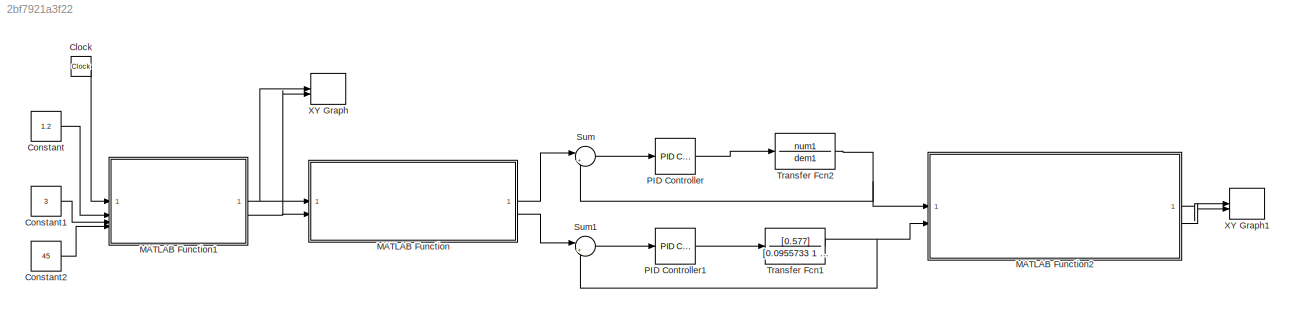
MODEL slx_2bf7921a3f22
KIND model
CONFIG AbsTol = auto
CONFIG EnableMultiTasking = off
CONFIG FixedStep = auto
CONFIG MaxStep = auto
CONFIG MinStep = auto
CONFIG RelTol = 1e-3
CONFIG SampleTimeConstraint = Unconstrained
CONFIG SolverName = VariableStepAuto
CONFIG StartTime = 0.0
CONFIG StopTime = 10.0
BLOCK [Clock] Clock
  Decimation = 1
BLOCK [Constant] Constant
  Value = 1.2
BLOCK [Constant] Constant1
  Value = 3
BLOCK [Constant] Constant2
  Value = 45
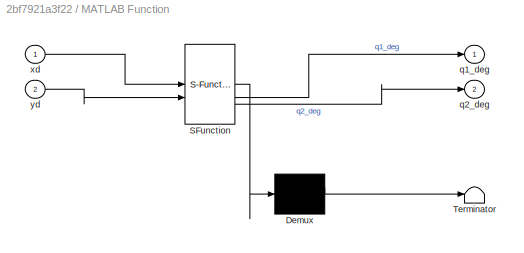
BLOCK [SubSystem] MATLAB Function
  ErrorFcn = Stateflow.Translate.translate
  PermitHierarchicalResolution = ExplicitOnly
  SFBlockType = MATLAB Function
  TreatAsAtomicUnit = on
BLOCK [Demux] MATLAB Function/ Demux 
  Outputs = 1
BLOCK [S-Function] MATLAB Function/ SFunction 
  EnableBusSupport = on
  FunctionName = sf_sfun
  PortCounts = [2 3]
  SFcnIsStateOwnerBlock = off
  SFunctionDeploymentMode = off
  Tag = Stateflow S-Function 2
BLOCK [Terminator] MATLAB Function/ Terminator 
BLOCK [Outport] MATLAB Function/q1_deg
BLOCK [Outport] MATLAB Function/q2_deg
  Port = 2
BLOCK [Inport] MATLAB Function/xd
BLOCK [Inport] MATLAB Function/yd
  Port = 2
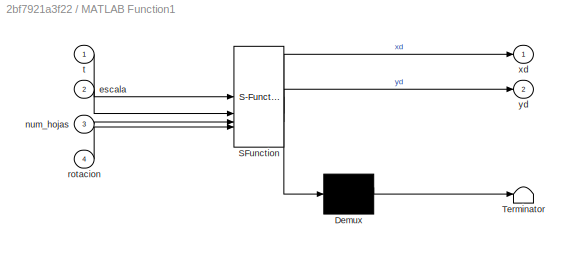
BLOCK [SubSystem] MATLAB Function1
  ErrorFcn = Stateflow.Translate.translate
  PermitHierarchicalResolution = ExplicitOnly
  SFBlockType = MATLAB Function
  TreatAsAtomicUnit = on
BLOCK [Demux] MATLAB Function1/ Demux 
  Outputs = 1
BLOCK [S-Function] MATLAB Function1/ SFunction 
  EnableBusSupport = on
  FunctionName = sf_sfun
  PortCounts = [4 3]
  SFcnIsStateOwnerBlock = off
  SFunctionDeploymentMode = off
  Tag = Stateflow S-Function 1
BLOCK [Terminator] MATLAB Function1/ Terminator 
BLOCK [Inport] MATLAB Function1/escala
  Port = 2
BLOCK [Inport] MATLAB Function1/num_hojas
  Port = 3
BLOCK [Inport] MATLAB Function1/rotacion
  Port = 4
BLOCK [Inport] MATLAB Function1/t
BLOCK [Outport] MATLAB Function1/xd
BLOCK [Outport] MATLAB Function1/yd
  Port = 2
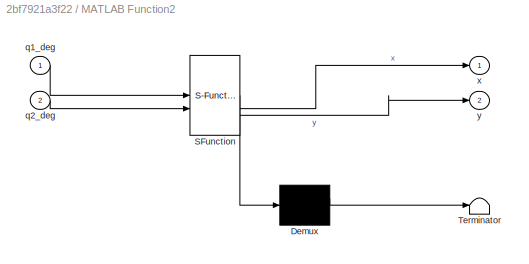
BLOCK [SubSystem] MATLAB Function2
  ErrorFcn = Stateflow.Translate.translate
  PermitHierarchicalResolution = ExplicitOnly
  SFBlockType = MATLAB Function
  TreatAsAtomicUnit = on
BLOCK [Demux] MATLAB Function2/ Demux 
  Outputs = 1
BLOCK [S-Function] MATLAB Function2/ SFunction 
  EnableBusSupport = on
  FunctionName = sf_sfun
  PortCounts = [2 3]
  SFcnIsStateOwnerBlock = off
  SFunctionDeploymentMode = off
  Tag = Stateflow S-Function 3
BLOCK [Terminator] MATLAB Function2/ Terminator 
BLOCK [Inport] MATLAB Function2/q1_deg
BLOCK [Inport] MATLAB Function2/q2_deg
  Port = 2
BLOCK [Outport] MATLAB Function2/x
BLOCK [Outport] MATLAB Function2/y
  Port = 2
BLOCK [Reference] PID Controller  REF=slpidlib/PID Controller
  LibrarySourceBlock = simulink/Continuous/PID Controller
  SourceBlock = slpidlib/PID Controller
  SourceType = PID 1dof
BLOCK [Reference] PID Controller1  REF=slpidlib/PID Controller
  LibrarySourceBlock = simulink/Continuous/PID Controller
  SourceBlock = slpidlib/PID Controller
  SourceType = PID 1dof
BLOCK [Sum] Sum
  Inputs = |+-
BLOCK [Sum] Sum1
  Inputs = |+-
BLOCK [TransferFcn] Transfer Fcn1
  Denominator = [0.0955733 1 0]
  Numerator = [0.577]
BLOCK [TransferFcn] Transfer Fcn2
  Denominator = dem1
  Numerator = num1
BLOCK [Record] XY Graph
  CompatibilityTag = XY
  FileSettingsInternal = {"entries":[{"content":{"excelSettings":{"content":{},"type":"Streamout.ExcelSettings"}},"type":"Streamout.FileSettingStorage","uuid":""}],"packageUris":["http:\/\/schema.mathworks.com\/mf0\/streamout_blocks\/R2020a"],"version":"1.0"}
  Layout = [1 1]
  SignalsInternal = {"entries":[{"content":{"signals":[{"content":{"blockPath":[],"dimensions":[1],"domain":"","lineColor":"#a2142f","plots":[1],"port":1,"sid":[""],"signalID":220,"signalName":"MATLAB Function1:1"},"type":"RecordBlkView.Signal","uuid":""},{"content":{"blockPath":[],"dimensions":[1],"domain":"","lineColor":"#139fff","plots":[1],"port":2,"sid":[""],"signalID":224,"signalName":"MATLAB Function1:2"},"typ...<+182ch>
  VisualizationBindings = {"xyplotplugin":{"info":[{"series":[{"bindingParametersList":[{"parameter":"X-Axis","signalID":220,"signalName":"MATLAB Function1:1"},{"parameter":"Y-Axis","signalID":224,"signalName":"MATLAB Function1:2"}],"seriesID":30579}],"subplotID":1}]}}
BLOCK [Record] XY Graph1
  CompatibilityTag = XY
  FileSettingsInternal = {"entries":[{"content":{"excelSettings":{"content":{},"type":"Streamout.ExcelSettings"}},"type":"Streamout.FileSettingStorage","uuid":""}],"packageUris":["http:\/\/schema.mathworks.com\/mf0\/streamout_blocks\/R2020a"],"version":"1.0"}
  Layout = [1 1]
  SignalsInternal = {"entries":[{"content":{"signals":[{"content":{"blockPath":[],"dimensions":[1],"domain":"","lineColor":"#a2142f","plots":[1],"port":1,"sid":[""],"signalID":228,"signalName":"MATLAB Function2:1"},"type":"RecordBlkView.Signal","uuid":""},{"content":{"blockPath":[],"dimensions":[1],"domain":"","lineColor":"#139fff","plots":[1],"port":2,"sid":[""],"signalID":232,"signalName":"MATLAB Function2:2"},"typ...<+182ch>
  VisualizationBindings = {"xyplotplugin":{"info":[{"series":[{"bindingParametersList":[{"parameter":"X-Axis","signalID":228,"signalName":"MATLAB Function2:1"},{"parameter":"Y-Axis","signalID":232,"signalName":"MATLAB Function2:2"}],"seriesID":49007}],"subplotID":1}]}}
LINE Clock:1 -> MATLAB Function1:1
LINE Constant1:1 -> MATLAB Function1:3
LINE Constant2:1 -> MATLAB Function1:4
LINE Constant:1 -> MATLAB Function1:2
NET MATLAB Function1:1 -> MATLAB Function:1, XY Graph:1
NET MATLAB Function1:2 -> MATLAB Function:2, XY Graph:2
LINE MATLAB Function2:1 -> XY Graph1:1
LINE MATLAB Function2:2 -> XY Graph1:2
LINE MATLAB Function:1 -> Sum:1
LINE MATLAB Function:2 -> Sum1:1
LINE PID Controller1:1 -> Transfer Fcn1:1
LINE PID Controller:1 -> Transfer Fcn2:1
LINE Sum1:1 -> PID Controller1:1
LINE Sum:1 -> PID Controller:1
NET Transfer Fcn1:1 -> MATLAB Function2:2, Sum1:2
NET Transfer Fcn2:1 -> MATLAB Function2:1, Sum:2
note: NET lines group one-source signal fan-out (src -> all destinations, sorted); 1:1 wires keep LINE
CHART MATLAB Function1 states=1 transitions=1
  STATE_LABEL 'eML_blk_kernel()'
  STATE_LABEL 'SCRIPT:\nfunction [xd, yd] = calcular_trebol(t, escala, num_hojas, rotacion)\n    % Calcula las coordenadas x e y para un trébol\n    % Entradas:\n    %   t: Tiempo (proporcionado por el bloque Clock)\n    %   escala: Factor de escala\n    %   num_hojas: Número de hojas del trébol\n    %   rotacion: Ángulo de rotación en grados\n    % Salidas:\n    %   xd, yd: Coordenadas del trébol\n\n    % Definir el ángul...<+425ch>'
CHART MATLAB Function states=1 transitions=1
  STATE_LABEL 'eML_blk_kernel()'
  STATE_LABEL 'SCRIPT:\nfunction [q1_deg, q2_deg] = inverse_kinematics_two_link_degrees(xd, yd)\n    % Calcula la cinemática inversa para un mecanismo de dos eslabones\n    % Entradas:\n    %   xd, yd: Vectores de coordenadas del extremo del brazo robótico deseadas\n    % Salidas:\n    %   q1_deg, q2_deg: Vectores de ángulos de las articulaciones en grados\n\n    l1 = 23.1079;\n    l2 = 14.1421;\n\n    % Asegúrate de que x...<+781ch>'
CHART MATLAB Function2 states=1 transitions=1
  STATE_LABEL 'eML_blk_kernel()'
  STATE_LABEL 'SCRIPT:\nfunction [x, y] = direct_kinematics_two_link_degrees(q1_deg, q2_deg)\n    % Calcula la cinemática directa para un mecanismo de dos eslabones\n    % Entradas:\n    %   q1_deg, q2_deg: Ángulos de las articulaciones en grados\n    % Salidas:\n    %   x, y: Coordenadas del extremo del brazo robótico\n\n    l1 = 23.1079;\n    l2 = 14.1421;\n\n    % Convertir los ángulos de grados a radianes\n    q1 = deg2...<+167ch>'
CHART  states=0 transitions=0
CHART  states=0 transitions=0
CHART  states=0 transitions=0
